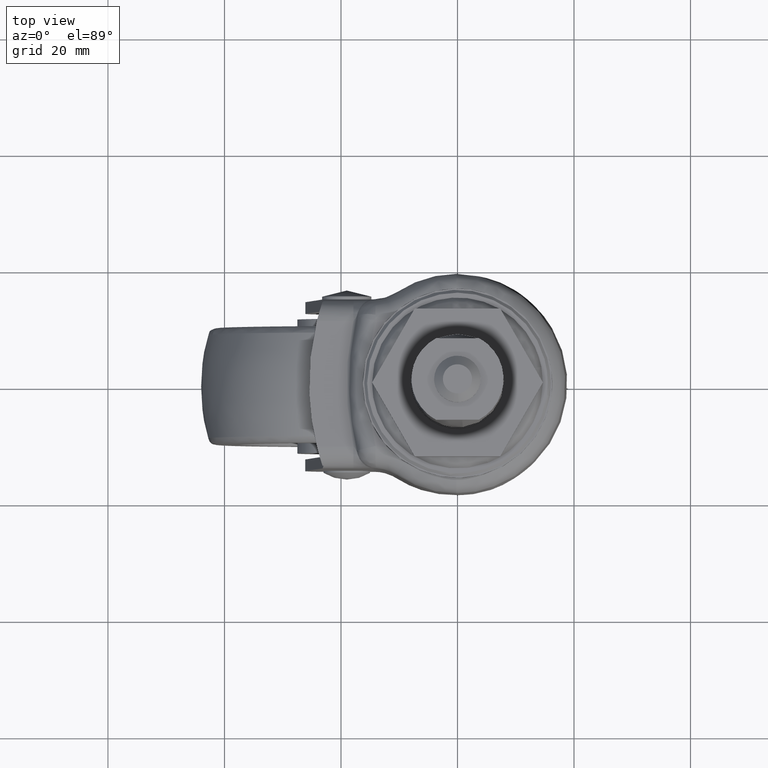
[diagram: clean part render]
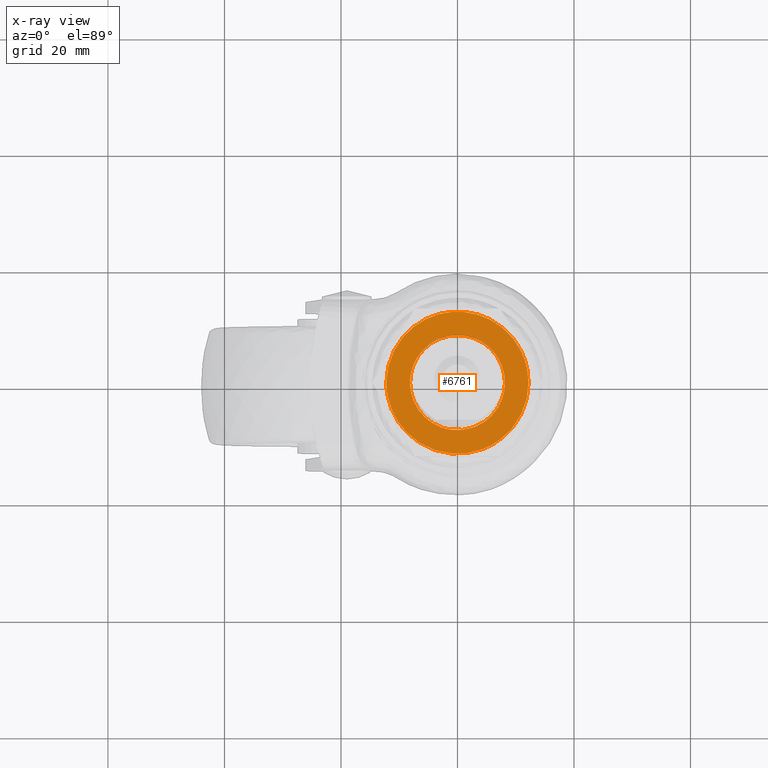
[diagram: x-ray — body ghosted, one internal face saturated and labeled with its STEP entity id]
A machine part, top view, then the same camera in x-ray: the body is ghosted and one INTERNAL B-rep face — a face not visible from any outside direction — is saturated and labeled: STEP entity #6761.
In plain terms, the highlighted face is a freeform B-spline surface patch.
Its self-contained STEP definition (entity closure, byte-faithful):
#4888=CARTESIAN_POINT('',(0.071121264434776,8.149689672971928,-1.898178758164915));
#4889=VERTEX_POINT('',#4888);
#4895=CARTESIAN_POINT('',(-8.149999999999999,7.105427E-015,-1.898178758164915));
#4896=VERTEX_POINT('',#4895);
#4897=CARTESIAN_POINT('',(0.071121264434776,8.149689672971928,-1.898178758164915));
#4898=CARTESIAN_POINT('',(0.035561309311753,8.150000000000004,-1.898178758164915));
#4899=CARTESIAN_POINT('',(0.0,8.150000000000006,-1.898178758164915));
#4900=CARTESIAN_POINT('',(-8.149999999999999,8.150000000000006,-1.898178758164915));
#4901=CARTESIAN_POINT('',(-8.149999999999999,7.105427E-015,-1.898178758164915));
#4909=(BOUNDED_CURVE()B_SPLINE_CURVE(2,(#4897,#4898,#4899,#4900,#4901),.UNSPECIFIED.,.F.,.U.)B_SPLINE_CURVE_WITH_KNOTS((3,2,3),(0.248460105659695,0.250000000000000,0.500000000000000),.UNSPECIFIED.)CURVE()GEOMETRIC_REPRESENTATION_ITEM()RATIONAL_B_SPLINE_CURVE((0.996414028088098,0.998195901560141,1.0,0.707106781186548,1.0))REPRESENTATION_ITEM(''));
#4910=EDGE_CURVE('',#4889,#4896,#4909,.T.);
#4912=CARTESIAN_POINT('',(-1.011643217053294,-8.086969642665286,-1.898178758164915));
#4913=VERTEX_POINT('',#4912);
#4914=CARTESIAN_POINT('',(-8.149999999999999,7.105427E-015,-1.898178758164915));
#4915=CARTESIAN_POINT('',(-8.149999999999999,-7.193993591040282,-1.898178758164914));
#4916=CARTESIAN_POINT('',(-1.011643217053294,-8.086969642665288,-1.898178758164915));
#4924=(BOUNDED_CURVE()B_SPLINE_CURVE(2,(#4914,#4915,#4916),.UNSPECIFIED.,.F.,.U.)B_SPLINE_CURVE_WITH_KNOTS((3,3),(0.500000000000000,0.728526071025017),.UNSPECIFIED.)CURVE()GEOMETRIC_REPRESENTATION_ITEM()RATIONAL_B_SPLINE_CURVE((1.0,0.732265053898765,0.954005430266409))REPRESENTATION_ITEM(''));
#4925=EDGE_CURVE('',#4896,#4913,#4924,.T.);
#4975=CARTESIAN_POINT('',(8.149999999999999,7.105427E-015,-1.898178758164915));
#4976=VERTEX_POINT('',#4975);
#4977=CARTESIAN_POINT('',(-1.011643217053294,-8.086969642665286,-1.898178758164915));
#4978=CARTESIAN_POINT('',(-0.507785159501866,-8.149999999999992,-1.898178758164915));
#4979=CARTESIAN_POINT('',(0.0,-8.149999999999992,-1.898178758164915));
#4980=CARTESIAN_POINT('',(8.149999999999999,-8.149999999999992,-1.898178758164915));
#4981=CARTESIAN_POINT('',(8.149999999999999,7.105427E-015,-1.898178758164915));
#4989=(BOUNDED_CURVE()B_SPLINE_CURVE(2,(#4977,#4978,#4979,#4980,#4981),.UNSPECIFIED.,.F.,.U.)B_SPLINE_CURVE_WITH_KNOTS((3,2,3),(0.728526071025016,0.750000000000000,1.0),.UNSPECIFIED.)CURVE()GEOMETRIC_REPRESENTATION_ITEM()RATIONAL_B_SPLINE_CURVE((0.954005430266407,0.974841727287782,1.0,0.707106781186548,1.0))REPRESENTATION_ITEM(''));
#4990=EDGE_CURVE('',#4913,#4976,#4989,.T.);
#4992=CARTESIAN_POINT('',(8.149999999999999,7.105427E-015,-1.898178758164915));
#4993=CARTESIAN_POINT('',(8.149999999999999,8.079186366105139,-1.898178758164915));
#4994=CARTESIAN_POINT('',(0.071121264434776,8.149689672971928,-1.898178758164915));
#5002=(BOUNDED_CURVE()B_SPLINE_CURVE(2,(#4992,#4993,#4994),.UNSPECIFIED.,.F.,.U.)B_SPLINE_CURVE_WITH_KNOTS((3,3),(0.0,0.248460105659695),.UNSPECIFIED.)CURVE()GEOMETRIC_REPRESENTATION_ITEM()RATIONAL_B_SPLINE_CURVE((1.0,0.708910879626406,0.996414028088098))REPRESENTATION_ITEM(''));
#5003=EDGE_CURVE('',#4976,#4889,#5002,.T.);
#6053=CARTESIAN_POINT('',(4.342269578773918,-11.400073979384230,-1.898178758164920));
#6054=VERTEX_POINT('',#6053);
#6055=CARTESIAN_POINT('',(-12.199057000000099,0.0,-1.898178758164915));
#6056=VERTEX_POINT('',#6055);
#6057=CARTESIAN_POINT('',(4.342269578773917,-11.400073979384226,-1.898178758164920));
#6058=CARTESIAN_POINT('',(2.244641725963685,-12.199057000000103,-1.898178758164915));
#6059=CARTESIAN_POINT('',(0.0,-12.199057000000099,-1.898178758164915));
#6060=CARTESIAN_POINT('',(-12.199057000000099,-12.199057000000099,-1.898178758164915));
#6061=CARTESIAN_POINT('',(-12.199057000000099,0.0,-1.898178758164915));
#6069=(BOUNDED_CURVE()B_SPLINE_CURVE(2,(#6057,#6058,#6059,#6060,#6061),.UNSPECIFIED.,.F.,.U.)B_SPLINE_CURVE_WITH_KNOTS((3,2,3),(0.689552769325658,0.750000000000000,1.0),.UNSPECIFIED.)CURVE()GEOMETRIC_REPRESENTATION_ITEM()RATIONAL_B_SPLINE_CURVE((0.892609506576507,0.929181664157731,1.0,0.707106781186547,1.0))REPRESENTATION_ITEM(''));
#6070=EDGE_CURVE('',#6054,#6056,#6069,.T.);
#6072=CARTESIAN_POINT('',(11.982978164307470,2.285875338035550,-1.898178758164921));
#6073=VERTEX_POINT('',#6072);
#6074=CARTESIAN_POINT('',(-12.199057000000099,0.0,-1.898178758164915));
#6075=CARTESIAN_POINT('',(-12.199057000000099,12.199057000000099,-1.898178758164915));
#6076=CARTESIAN_POINT('',(0.0,12.199057000000099,-1.898178758164915));
#6077=CARTESIAN_POINT('',(10.091937623036070,12.199057000000099,-1.898178758164914));
#6078=CARTESIAN_POINT('',(11.982978164307472,2.285875338035551,-1.898178758164920));
#6086=(BOUNDED_CURVE()B_SPLINE_CURVE(2,(#6074,#6075,#6076,#6077,#6078),.UNSPECIFIED.,.F.,.U.)B_SPLINE_CURVE_WITH_KNOTS((3,2,3),(0.0,0.250000000000000,0.467838633734301),.UNSPECIFIED.)CURVE()GEOMETRIC_REPRESENTATION_ITEM()RATIONAL_B_SPLINE_CURVE((1.0,0.707106781186547,1.0,0.744786165534543,0.934335795149464))REPRESENTATION_ITEM(''));
#6087=EDGE_CURVE('',#6056,#6073,#6086,.T.);
#6171=CARTESIAN_POINT('',(12.199057000000099,0.0,-1.898178758164915));
#6172=VERTEX_POINT('',#6171);
#6173=CARTESIAN_POINT('',(12.199057000000099,0.0,-1.898178758164915));
#6174=CARTESIAN_POINT('',(12.199057000000099,-8.407436463026823,-1.898178758164915));
#6175=CARTESIAN_POINT('',(4.342269578773918,-11.400073979384223,-1.898178758164921));
#6183=(BOUNDED_CURVE()B_SPLINE_CURVE(2,(#6173,#6174,#6175),.UNSPECIFIED.,.F.,.U.)B_SPLINE_CURVE_WITH_KNOTS((3,3),(0.500000000000000,0.689552769325658),.UNSPECIFIED.)CURVE()GEOMETRIC_REPRESENTATION_ITEM()RATIONAL_B_SPLINE_CURVE((1.0,0.777925117028816,0.892609506576507))REPRESENTATION_ITEM(''));
#6184=EDGE_CURVE('',#6172,#6054,#6183,.T.);
#6216=CARTESIAN_POINT('',(11.982978164307475,2.285875338035551,-1.898178758164921));
#6217=CARTESIAN_POINT('',(12.199057000000098,1.153150400871967,-1.898178758164915));
#6218=CARTESIAN_POINT('',(12.199057000000099,0.0,-1.898178758164915));
#6226=(BOUNDED_CURVE()B_SPLINE_CURVE(2,(#6216,#6217,#6218),.UNSPECIFIED.,.F.,.U.)B_SPLINE_CURVE_WITH_KNOTS((3,3),(0.467838633734301,0.500000000000000),.UNSPECIFIED.)CURVE()GEOMETRIC_REPRESENTATION_ITEM()RATIONAL_B_SPLINE_CURVE((0.934335795149463,0.962320615652004,1.0))REPRESENTATION_ITEM(''));
#6227=EDGE_CURVE('',#6073,#6172,#6226,.T.);
#6744=CARTESIAN_POINT('',(-13.417742430812590,-13.414345590426990,-1.898178758164915));
#6745=CARTESIAN_POINT('',(13.417741558268039,-13.414345590426990,-1.898178758164915));
#6746=CARTESIAN_POINT('',(-13.417742430812590,13.417468706140060,-1.898178758164915));
#6747=CARTESIAN_POINT('',(13.417741558268039,13.417468706140060,-1.898178758164915));
#6748=B_SPLINE_SURFACE_WITH_KNOTS('',1,1,((#6744,#6746),(#6745,#6747)),.UNSPECIFIED.,.F.,.F.,.U.,(2,2),(2,2),(0.0,26.835483989080629),(0.0,26.831814296567050),.UNSPECIFIED.);
#6749=ORIENTED_EDGE('',*,*,#6070,.F.);
#6750=ORIENTED_EDGE('',*,*,#6184,.F.);
#6751=ORIENTED_EDGE('',*,*,#6227,.F.);
#6752=ORIENTED_EDGE('',*,*,#6087,.F.);
#6753=EDGE_LOOP('',(#6749,#6750,#6751,#6752));
#6754=FACE_OUTER_BOUND('',#6753,.T.);
#6755=ORIENTED_EDGE('',*,*,#5003,.F.);
#6756=ORIENTED_EDGE('',*,*,#4990,.F.);
#6757=ORIENTED_EDGE('',*,*,#4925,.F.);
#6758=ORIENTED_EDGE('',*,*,#4910,.F.);
#6759=EDGE_LOOP('',(#6755,#6756,#6757,#6758));
#6760=FACE_BOUND('',#6759,.T.);
#6761=ADVANCED_FACE('',(#6754,#6760),#6748,.T.);